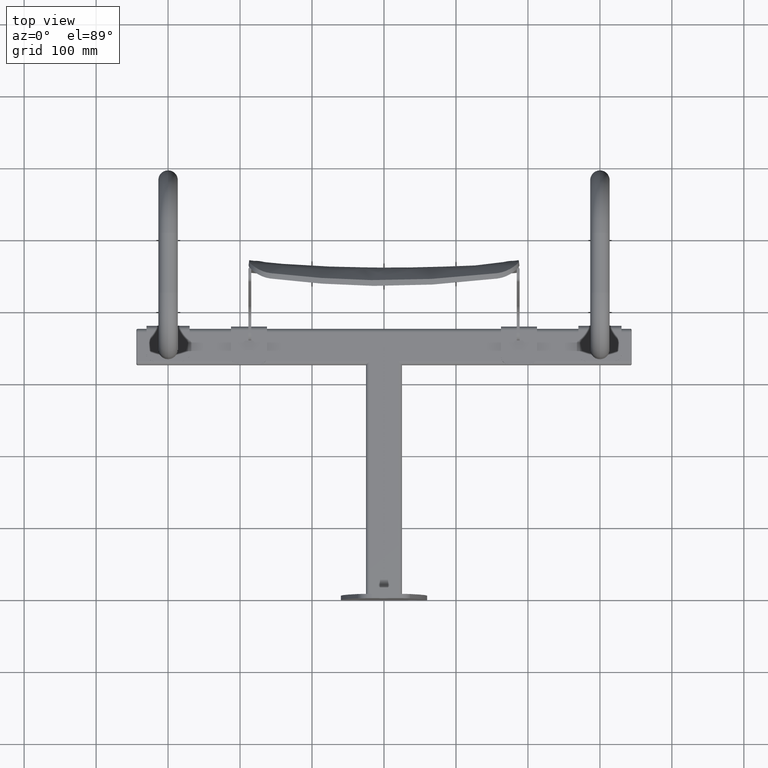
[diagram: clean part render]
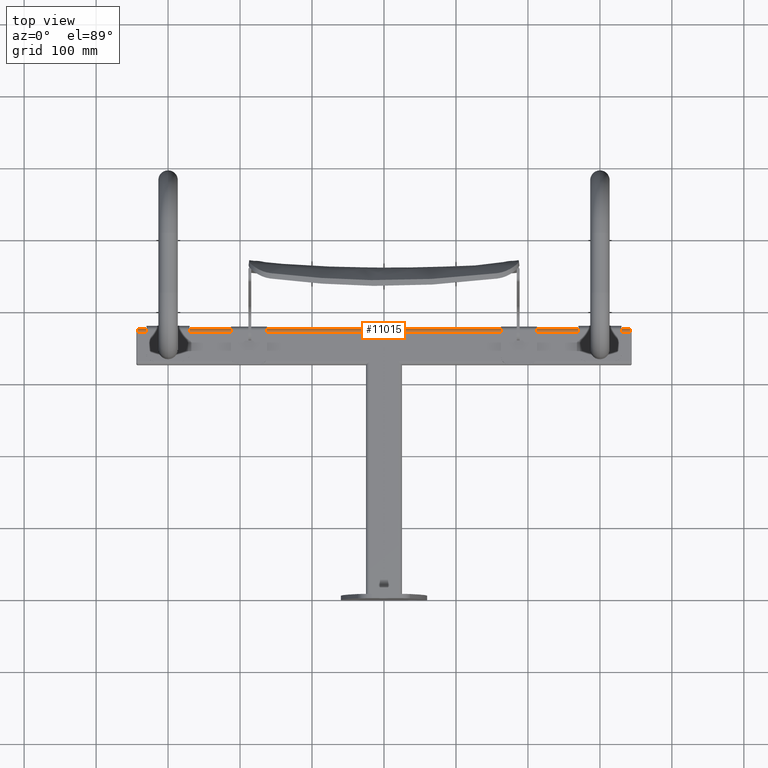
[diagram: same view with one face highlighted and labeled with its STEP entity id]
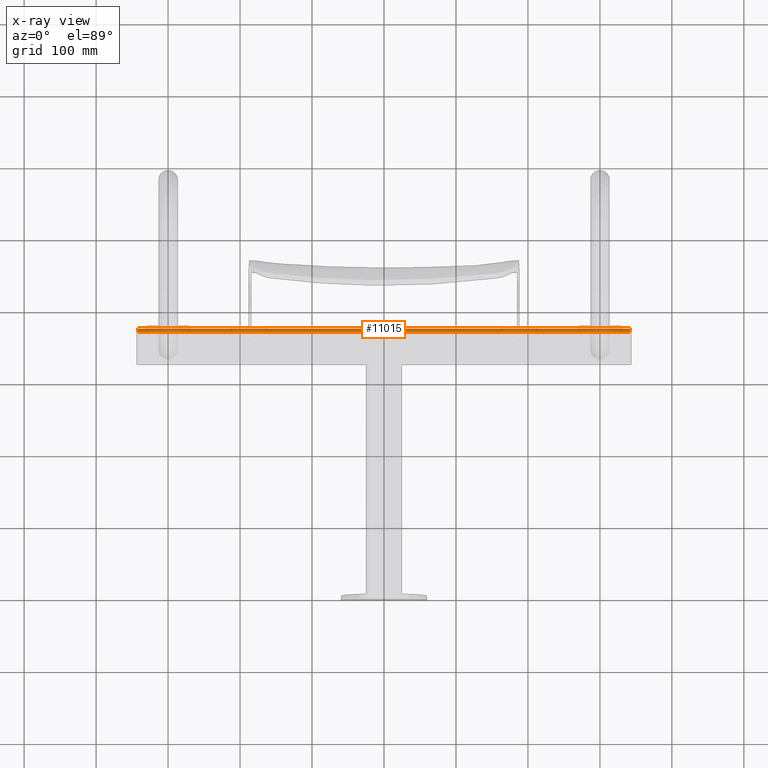
[diagram: x-ray of the same camera — body ghosted, the highlighted face saturated]
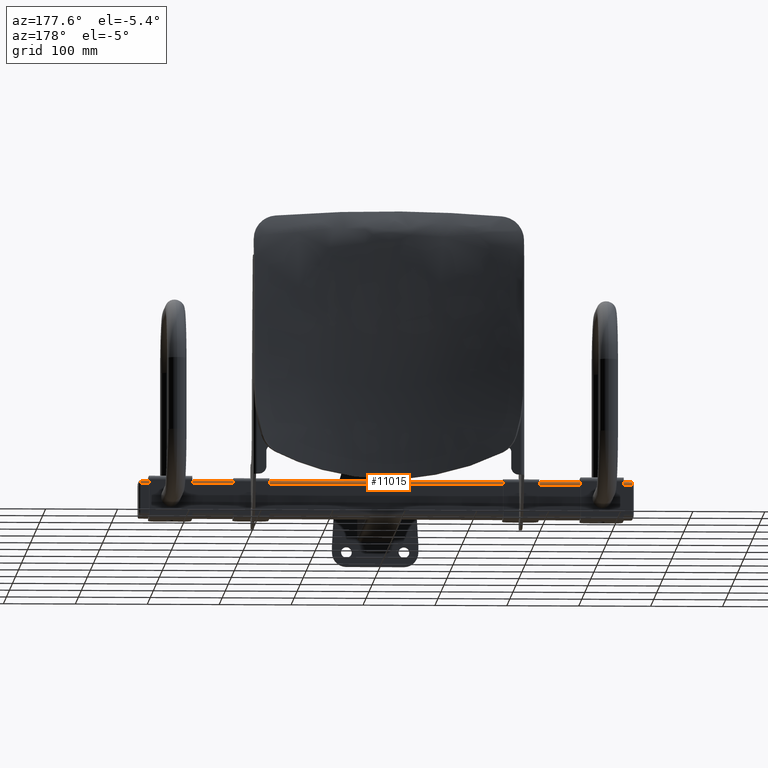
[diagram: same view with one face highlighted and labeled with its STEP entity id]
A machine part, top view. The second image highlights one B-rep face of the part: STEP entity #11015.
The next image is the same camera in x-ray: the body ghosted, the highlighted face saturated — about 8% of this face is hidden behind the body in this view.
A second angle (auxiliary view) of the same face is appended — the face is thin or edge-on in the first view.
In plain terms, the highlighted cylindrical surface (edge-blend (fillet) strip) has radius 5 mm, axis along (-1, -0, 0).
Its self-contained STEP definition (entity closure, byte-faithful):
#512 = AXIS2_PLACEMENT_3D ( 'NONE', #2749, #2750, #2748 ) ;
#945 = CIRCLE ( 'NONE', #4270, 5.000000000000000900 ) ;
#1012 = LINE ( 'NONE', #5878, #1015 ) ;
#1015 = VECTOR ( 'NONE', #5879, 1000.000000000000000 ) ;
#1327 = CIRCLE ( 'NONE', #4204, 5.000000000000004400 ) ;
#2748 = DIRECTION ( 'NONE',  ( 8.068481283613063200E-017, -1.000000000000000000, 0.0000000000000000000 ) ) ;
#2749 = CARTESIAN_POINT ( 'NONE',  ( -2.993406556220444800E-014, 371.0000000000000600, 20.00000000000000000 ) ) ;
#2750 = DIRECTION ( 'NONE',  ( -1.000000000000000000, -8.068481283613057000E-017, 0.0000000000000000000 ) ) ;
#2924 = CARTESIAN_POINT ( 'NONE',  ( -344.0000000000000600, 376.0000000000000000, 20.00000000000000000 ) ) ;
#2925 = DIRECTION ( 'NONE',  ( 1.000000000000000000, 8.068481283613057000E-017, -0.0000000000000000000 ) ) ;
#4168 = EDGE_CURVE ( 'NONE', #5639, #16010, #1327, .T. ) ;
#4204 = AXIS2_PLACEMENT_3D ( 'NONE', #15940, #15941, #15942 ) ;
#4270 = AXIS2_PLACEMENT_3D ( 'NONE', #4739, #4740, #4741 ) ;
#4424 = EDGE_CURVE ( 'NONE', #5656, #5664, #945, .T. ) ;
#4523 = EDGE_LOOP ( 'NONE', ( #11685, #11684, #11683, #11682 ) ) ;
#4739 = CARTESIAN_POINT ( 'NONE',  ( -342.0000000000000600, 371.0000000000000600, 20.00000000000000000 ) ) ;
#4740 = DIRECTION ( 'NONE',  ( 1.000000000000000000, 0.0000000000000000000, 0.0000000000000000000 ) ) ;
#4741 = DIRECTION ( 'NONE',  ( 0.0000000000000000000, 0.0000000000000000000, -1.000000000000000000 ) ) ;
#5639 = VERTEX_POINT ( 'NONE', #13455 ) ;
#5656 = VERTEX_POINT ( 'NONE', #13472 ) ;
#5664 = VERTEX_POINT ( 'NONE', #13480 ) ;
#5739 = EDGE_CURVE ( 'NONE', #5639, #5664, #1012, .T. ) ;
#5878 = CARTESIAN_POINT ( 'NONE',  ( -2.993406556220444800E-014, 371.0000000000000600, 25.00000000000000000 ) ) ;
#5879 = DIRECTION ( 'NONE',  ( -1.000000000000000000, -8.068481283613057000E-017, 0.0000000000000000000 ) ) ;
#11015 = ADVANCED_FACE ( 'NONE', ( #11193 ), #11204, .T. ) ;
#11193 = FACE_OUTER_BOUND ( 'NONE', #4523, .T. ) ;
#11204 = CYLINDRICAL_SURFACE ( 'NONE', #512, 5.000000000000004400 ) ;
#11682 = ORIENTED_EDGE ( 'NONE', *, *, #4168, .T. ) ;
#11683 = ORIENTED_EDGE ( 'NONE', *, *, #5739, .F. ) ;
#11684 = ORIENTED_EDGE ( 'NONE', *, *, #4424, .T. ) ;
#11685 = ORIENTED_EDGE ( 'NONE', *, *, #14060, .F. ) ;
#13455 = CARTESIAN_POINT ( 'NONE',  ( 341.9999999999999400, 371.0000000000000600, 25.00000000000000000 ) ) ;
#13472 = CARTESIAN_POINT ( 'NONE',  ( -342.0000000000000600, 376.0000000000000000, 20.00000000000000000 ) ) ;
#13480 = CARTESIAN_POINT ( 'NONE',  ( -342.0000000000000600, 371.0000000000000600, 25.00000000000000000 ) ) ;
#14060 = EDGE_CURVE ( 'NONE', #5656, #16010, #14337, .T. ) ;
#14337 = LINE ( 'NONE', #2924, #14340 ) ;
#14340 = VECTOR ( 'NONE', #2925, 1000.000000000000000 ) ;
#14640 = CARTESIAN_POINT ( 'NONE',  ( 341.9999999999998900, 376.0000000000000600, 20.00000000000000000 ) ) ;
#15940 = CARTESIAN_POINT ( 'NONE',  ( 341.9999999999999400, 371.0000000000000600, 20.00000000000000000 ) ) ;
#15941 = DIRECTION ( 'NONE',  ( -1.000000000000000000, -3.330669073875474400E-015, 0.0000000000000000000 ) ) ;
#15942 = DIRECTION ( 'NONE',  ( 0.0000000000000000000, -1.000000000000000000, 0.0000000000000000000 ) ) ;
#16010 = VERTEX_POINT ( 'NONE', #14640 ) ;